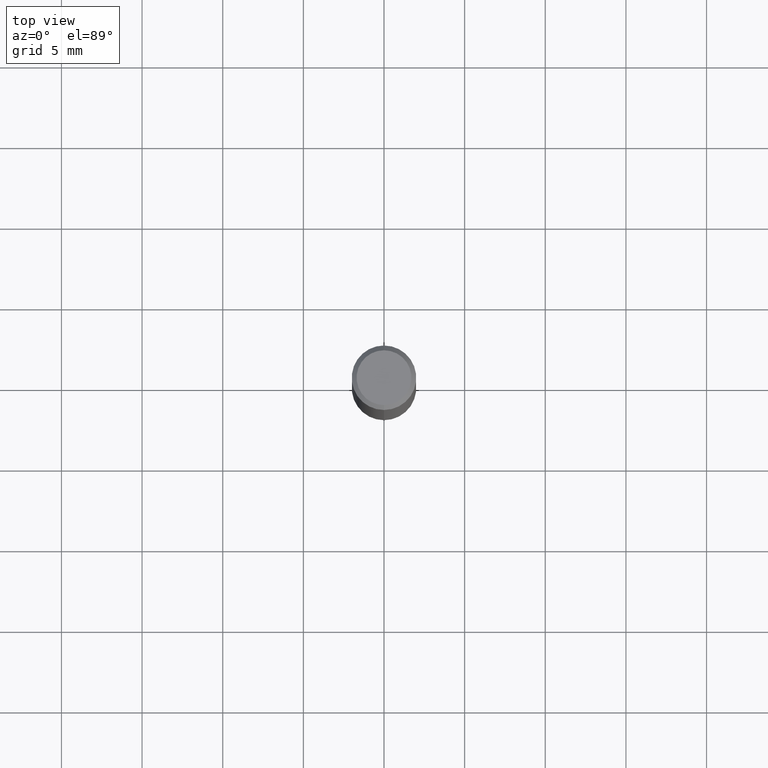
[diagram: clean part render]
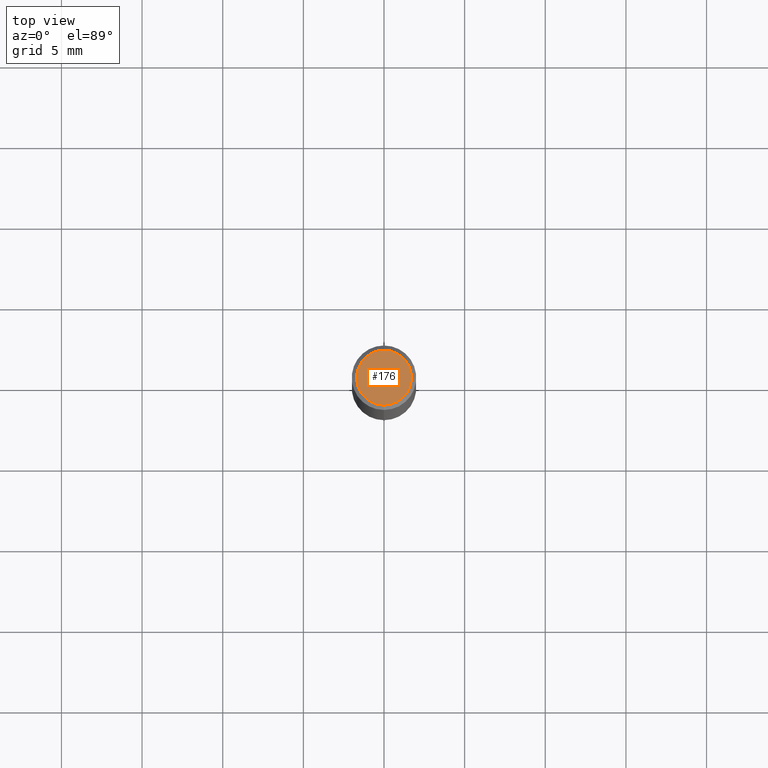
[diagram: same view with one face highlighted and labeled with its STEP entity id]
A machine part, top view. The second image highlights one B-rep face of the part: STEP entity #176.
In plain terms, the highlighted planar face has unit normal (-0, 0, 1).
Its self-contained STEP definition (entity closure, byte-faithful):
#98=EDGE_CURVE('',#170,#140,#235,.T.);
#140=VERTEX_POINT('',#289);
#156=EDGE_CURVE('',#140,#170,#305,.T.);
#170=VERTEX_POINT('',#319);
#176=ADVANCED_FACE('',(#325),#326,.T.);
#235=CIRCLE('',#385,1.7);
#289=CARTESIAN_POINT('',(0.0,1.7,0.0));
#305=CIRCLE('',#470,1.7);
#319=CARTESIAN_POINT('',(2.08183080149804E-016,-1.7,0.0));
#325=FACE_OUTER_BOUND('',#493,.T.);
#326=PLANE('',#494);
#385=AXIS2_PLACEMENT_3D('',#544,#545,#546);
#470=AXIS2_PLACEMENT_3D('',#657,#658,#659);
#493=EDGE_LOOP('',(#670,#671));
#494=AXIS2_PLACEMENT_3D('',#672,#673,#674);
#544=CARTESIAN_POINT('',(0.0,0.0,0.0));
#545=DIRECTION('',(0.0,0.0,-1.0));
#546=DIRECTION('',(0.0,1.0,0.0));
#657=CARTESIAN_POINT('',(0.0,0.0,0.0));
#658=DIRECTION('',(0.0,0.0,-1.0));
#659=DIRECTION('',(0.0,1.0,0.0));
#670=ORIENTED_EDGE('',*,*,#156,.F.);
#671=ORIENTED_EDGE('',*,*,#98,.F.);
#672=CARTESIAN_POINT('',(0.0,0.85,0.0));
#673=DIRECTION('',(-0.0,0.0,1.0));
#674=DIRECTION('',(0.0,-1.0,0.0));